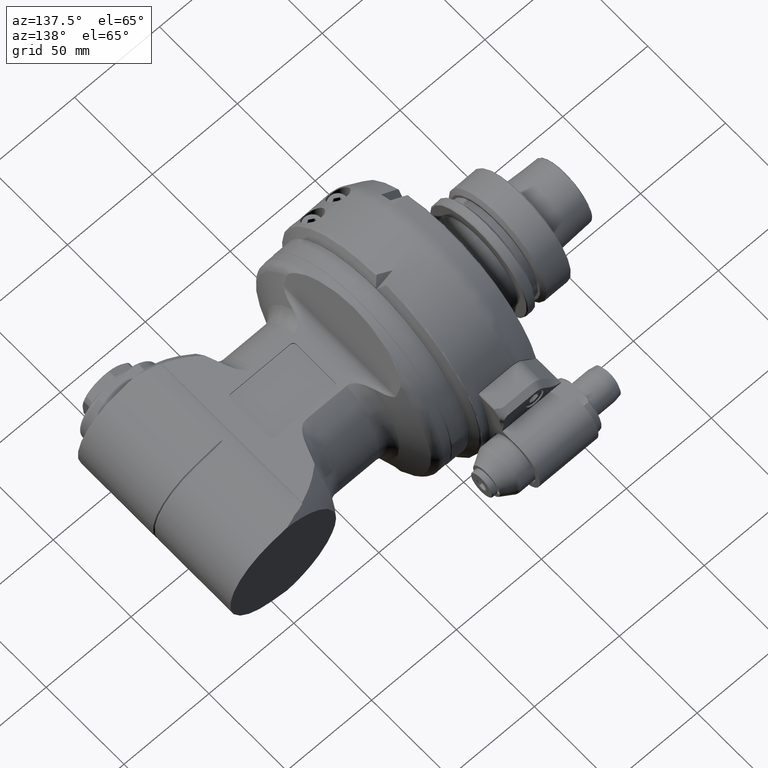
[diagram: clean part render]
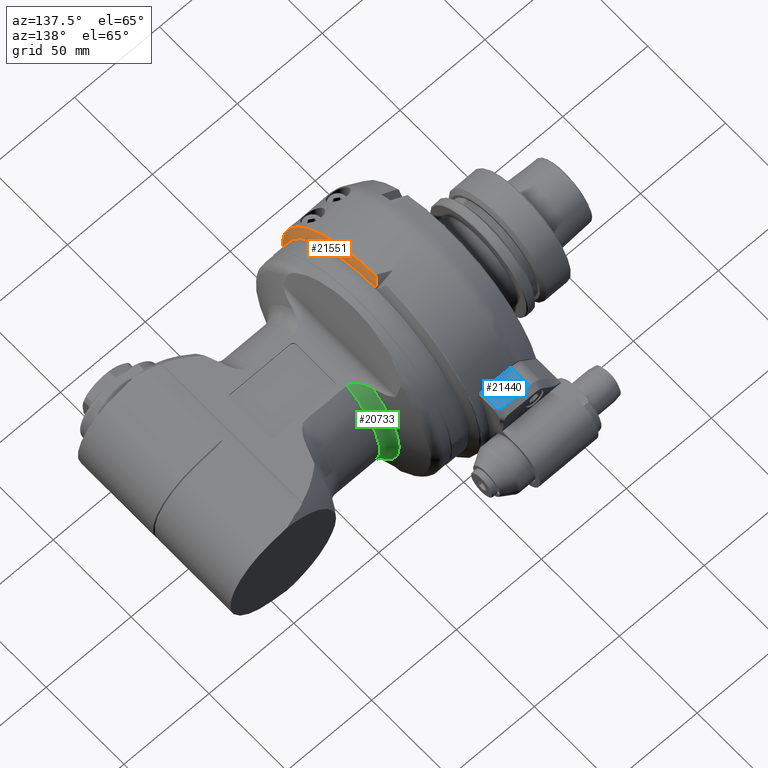
[diagram: same view with three faces highlighted in distinct colors, each labeled with its STEP entity id]
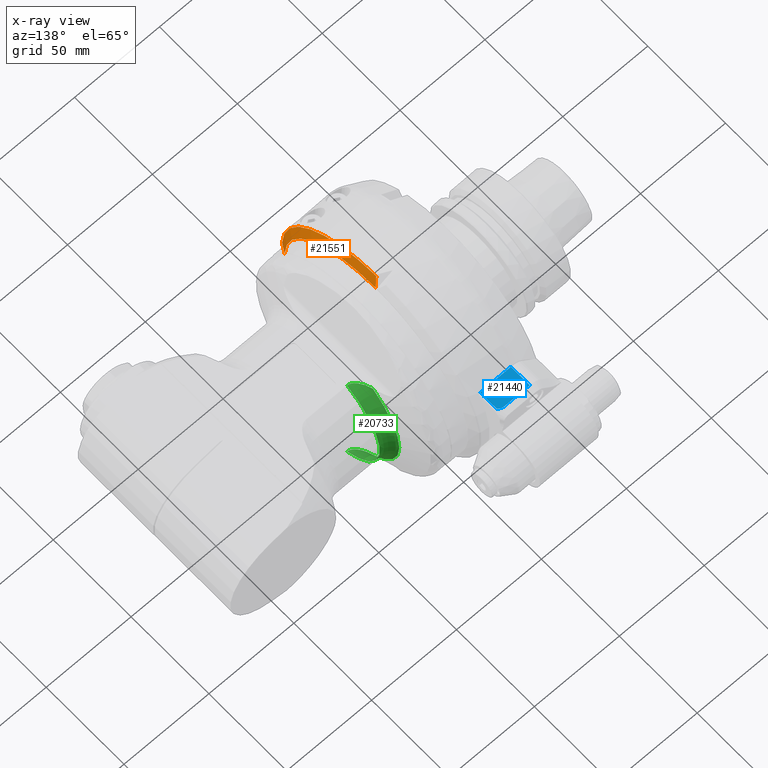
[diagram: x-ray of the same camera — body ghosted, the three highlighted faces saturated]
A machine part, auxiliary view with three faces highlighted in distinct colors.
The next image is the same camera in x-ray (body ghosted, the three faces saturated) — at least one of them is partly hidden behind the body in this view.
Their STEP definitions:

[orange] entity #21551 — the highlighted conical surface has half-angle 60 deg.
#461=B_SPLINE_CURVE_WITH_KNOTS('',3,(#48644,#48645,#48646,#48647,#48648,
#48649,#48650,#48651,#48652,#48653,#48654,#48655,#48656),.UNSPECIFIED.,
 .F.,.F.,(4,3,3,3,4),(0.,1.29933501823123,2.59866777029354,3.89799033605193,
5.19731135128558),.UNSPECIFIED.);
#462=B_SPLINE_CURVE_WITH_KNOTS('',3,(#48657,#48658,#48659,#48660,#48661,
#48662,#48663,#48664,#48665,#48666,#48667,#48668,#48669),.UNSPECIFIED.,
 .F.,.F.,(4,3,3,3,4),(0.,1.43268660536108,2.8653638122289,4.29803510924375,
5.73070480295307),.UNSPECIFIED.);
#607=CONICAL_SURFACE('',#24403,64.,1.0471975511966);
#2239=CIRCLE('',#24399,59.);
#2242=CIRCLE('',#24404,63.5);
#3247=FACE_OUTER_BOUND('',#4217,.T.);
#4217=EDGE_LOOP('',(#19795,#19796,#19797,#19798));
#9791=VERTEX_POINT('',#48627);
#9792=VERTEX_POINT('',#48628);
#9796=VERTEX_POINT('',#48641);
#9797=VERTEX_POINT('',#48642);
#13150=EDGE_CURVE('',#9791,#9792,#2239,.T.);
#13157=EDGE_CURVE('',#9796,#9797,#2242,.T.);
#13158=EDGE_CURVE('',#9792,#9797,#461,.T.);
#13159=EDGE_CURVE('',#9796,#9791,#462,.T.);
#19795=ORIENTED_EDGE('',*,*,#13157,.T.);
#19796=ORIENTED_EDGE('',*,*,#13158,.F.);
#19797=ORIENTED_EDGE('',*,*,#13150,.F.);
#19798=ORIENTED_EDGE('',*,*,#13159,.F.);
#21551=ADVANCED_FACE('',(#3247),#607,.T.);
#24399=AXIS2_PLACEMENT_3D('',#48629,#30948,#30949);
#24403=AXIS2_PLACEMENT_3D('',#48640,#30960,#30961);
#24404=AXIS2_PLACEMENT_3D('',#48643,#30962,#30963);
#30948=DIRECTION('center_axis',(1.,0.,0.));
#30949=DIRECTION('ref_axis',(0.,-1.,0.));
#30960=DIRECTION('center_axis',(-1.,0.,0.));
#30961=DIRECTION('ref_axis',(0.,1.,0.));
#30962=DIRECTION('center_axis',(1.,0.,0.));
#30963=DIRECTION('ref_axis',(0.,-1.,0.));
#48627=CARTESIAN_POINT('',(-14.0000002307687,-0.431645261540879,58.9984210158898));
#48628=CARTESIAN_POINT('',(-14.0000002307688,-58.9809291251124,1.49999984615385));
#48629=CARTESIAN_POINT('Origin',(-14.0000002307688,0.,0.));
#48640=CARTESIAN_POINT('Origin',(-16.8867515767169,0.,0.));
#48641=CARTESIAN_POINT('',(-16.5980764421201,-2.9708701142771,63.4304653204094));
#48642=CARTESIAN_POINT('',(-16.5980764421468,-63.4822809960934,1.49999984615384));
#48643=CARTESIAN_POINT('Origin',(-16.5980764421221,0.,0.));
#48644=CARTESIAN_POINT('Ctrl Pts',(-14.0000002307691,-58.980929125113,1.49999984615384));
#48645=CARTESIAN_POINT('Ctrl Pts',(-14.2165028592733,-59.3560439279506,
1.49999984615384));
#48646=CARTESIAN_POINT('Ctrl Pts',(-14.4330064890142,-59.7311581532941,
1.49999984615385));
#48647=CARTESIAN_POINT('Ctrl Pts',(-14.6495110648206,-60.106271832981,1.49999984615385));
#48648=CARTESIAN_POINT('Ctrl Pts',(-14.8660156406274,-60.4813855126685,
1.49999984615385));
#48649=CARTESIAN_POINT('Ctrl Pts',(-15.0825211625263,-60.856498646688,1.49999984615385));
#48650=CARTESIAN_POINT('Ctrl Pts',(-15.2990275793289,-61.2316112645871,
1.49999984615385));
#48651=CARTESIAN_POINT('Ctrl Pts',(-15.5155339961311,-61.6067238824855,
1.49999984615385));
#48652=CARTESIAN_POINT('Ctrl Pts',(-15.732041307861,-61.9818359842536,1.49999984615385));
#48653=CARTESIAN_POINT('Ctrl Pts',(-15.948549466951,-62.3569475973354,1.49999984615385));
#48654=CARTESIAN_POINT('Ctrl Pts',(-16.1650576260424,-62.7320592104196,
1.49999984615385));
#48655=CARTESIAN_POINT('Ctrl Pts',(-16.3815666325186,-63.1071703348143,
1.49999984615384));
#48656=CARTESIAN_POINT('Ctrl Pts',(-16.598076442122,-63.4822809960504,1.49999984615384));
#48657=CARTESIAN_POINT('Ctrl Pts',(-16.5980764421221,-2.97087011427896,
63.4304653204128));
#48658=CARTESIAN_POINT('Ctrl Pts',(-16.3796177023238,-2.76058180752677,
63.0615180871617));
#48659=CARTESIAN_POINT('Ctrl Pts',(-16.1616055772893,-2.54999216607342,
62.6924807557034));
#48660=CARTESIAN_POINT('Ctrl Pts',(-15.9440696991279,-2.3390818004764,62.3233480451839));
#48661=CARTESIAN_POINT('Ctrl Pts',(-15.726533823285,-2.12817143712715,61.9542153385984));
#48662=CARTESIAN_POINT('Ctrl Pts',(-15.5094741734663,-1.91694035672612,
61.5849872490974));
#48663=CARTESIAN_POINT('Ctrl Pts',(-15.2929229556197,-1.70536753133673,
61.2156580897968));
#48664=CARTESIAN_POINT('Ctrl Pts',(-15.0763717408182,-1.49379470892245,
60.8463289356896));
#48665=CARTESIAN_POINT('Ctrl Pts',(-14.8603289343609,-1.28188014906769,
60.476898706876));
#48666=CARTESIAN_POINT('Ctrl Pts',(-14.6448296044466,-1.06960103175968,
60.1073612996975));
#48667=CARTESIAN_POINT('Ctrl Pts',(-14.4293302784708,-0.857321918331403,
59.7378238992729));
#48668=CARTESIAN_POINT('Ctrl Pts',(-14.2143744022622,-0.644678255600911,
59.3681793144425));
#48669=CARTESIAN_POINT('Ctrl Pts',(-14.0000002307687,-0.43164526154088,
58.9984210158898));

[blue] entity #21440 — the highlighted planar face has unit normal (0, 0, -1).
#436=B_SPLINE_CURVE_WITH_KNOTS('',3,(#46498,#46499,#46500,#46501,#46502,
#46503,#46504,#46505,#46506,#46507,#46508,#46509,#46510,#46511,#46512,#46513,
#46514,#46515,#46516,#46517,#46518,#46519,#46520,#46521,#46522,#46523,#46524,
#46525,#46526,#46527,#46528,#46529,#46530,#46531,#46532,#46533,#46534,#46535,
#46536,#46537,#46538,#46539,#46540,#46541,#46542,#46543,#46544,#46545,#46546,
#46547,#46548,#46549,#46550,#46551,#46552,#46553,#46554,#46555,#46556,#46557,
#46558),.UNSPECIFIED.,.F.,.F.,(4,3,3,3,3,3,3,3,3,3,3,3,3,3,3,3,3,3,3,3,
4),(0.,0.106223676009217,0.212196239102737,0.318204730994492,0.424405081515264,
0.530795797405202,0.637358516383045,0.744060319606296,0.850855695988968,
1.06449194183231,1.27770940370377,1.48988846041323,1.70171346222576,1.91375228120589,
2.12609990589416,2.33877267367209,2.55171285041257,2.76479426591562,2.97782876659962,
3.19057324295497,3.40273703897832),.UNSPECIFIED.);
#3136=FACE_OUTER_BOUND('',#4093,.T.);
#4093=EDGE_LOOP('',(#19220,#19221,#19222,#19223,#19224));
#5549=LINE('',#45768,#7044);
#5610=LINE('',#46417,#7105);
#5614=LINE('',#46495,#7109);
#5615=LINE('',#46497,#7110);
#7044=VECTOR('',#30168,1.);
#7105=VECTOR('',#30363,1.);
#7109=VECTOR('',#30377,1.);
#7110=VECTOR('',#30378,1.);
#9551=VERTEX_POINT('',#45765);
#9552=VERTEX_POINT('',#45767);
#9616=VERTEX_POINT('',#46412);
#9618=VERTEX_POINT('',#46494);
#9619=VERTEX_POINT('',#46496);
#12780=EDGE_CURVE('',#9552,#9551,#5549,.T.);
#12882=EDGE_CURVE('',#9552,#9616,#5610,.T.);
#12887=EDGE_CURVE('',#9616,#9618,#5614,.T.);
#12888=EDGE_CURVE('',#9619,#9551,#5615,.T.);
#12889=EDGE_CURVE('',#9618,#9619,#436,.T.);
#19220=ORIENTED_EDGE('',*,*,#12887,.F.);
#19221=ORIENTED_EDGE('',*,*,#12882,.F.);
#19222=ORIENTED_EDGE('',*,*,#12780,.T.);
#19223=ORIENTED_EDGE('',*,*,#12888,.F.);
#19224=ORIENTED_EDGE('',*,*,#12889,.F.);
#20642=PLANE('',#24167);
#21440=ADVANCED_FACE('',(#3136),#20642,.F.);
#24167=AXIS2_PLACEMENT_3D('',#46493,#30375,#30376);
#30168=DIRECTION('',(1.,0.,0.));
#30363=DIRECTION('',(0.,1.,0.));
#30375=DIRECTION('center_axis',(0.,0.,-1.));
#30376=DIRECTION('ref_axis',(0.,1.,0.));
#30377=DIRECTION('',(1.,0.,0.));
#30378=DIRECTION('',(0.,-1.,0.));
#45765=CARTESIAN_POINT('',(-18.,41.75,29.));
#45767=CARTESIAN_POINT('',(-36.1890885503487,41.75,29.));
#45768=CARTESIAN_POINT('',(-43.,41.75,29.));
#46412=CARTESIAN_POINT('',(-36.1890884122241,53.7858987847126,29.));
#46417=CARTESIAN_POINT('',(-36.1890885503487,40.75,29.));
#46493=CARTESIAN_POINT('Origin',(-43.,75.75,29.));
#46494=CARTESIAN_POINT('',(-20.9999995155157,53.7858987847126,29.));
#46495=CARTESIAN_POINT('',(-43.,53.7858987847126,29.));
#46496=CARTESIAN_POINT('',(-18.,52.3466482589532,29.));
#46497=CARTESIAN_POINT('',(-18.,40.75,29.));
#46498=CARTESIAN_POINT('Ctrl Pts',(-20.9999995155157,53.7858987847126,29.));
#46499=CARTESIAN_POINT('Ctrl Pts',(-20.9645504970301,53.7858987847126,29.));
#46500=CARTESIAN_POINT('Ctrl Pts',(-20.9291413548841,53.7852454078151,29.));
#46501=CARTESIAN_POINT('Ctrl Pts',(-20.8937997823181,53.7839455315973,29.));
#46502=CARTESIAN_POINT('Ctrl Pts',(-20.858454461928,53.7826455175331,29.));
#46503=CARTESIAN_POINT('Ctrl Pts',(-20.8231925452817,53.7807000433148,29.));
#46504=CARTESIAN_POINT('Ctrl Pts',(-20.7879934943088,53.7781173089411,29.));
#46505=CARTESIAN_POINT('Ctrl Pts',(-20.7527825778415,53.7755337039353,29.));
#46506=CARTESIAN_POINT('Ctrl Pts',(-20.717589155421,53.7723085886177,29.));
#46507=CARTESIAN_POINT('Ctrl Pts',(-20.6824326089904,53.7684488500588,29.));
#46508=CARTESIAN_POINT('Ctrl Pts',(-20.6472761488016,53.7645891209681,29.));
#46509=CARTESIAN_POINT('Ctrl Pts',(-20.6121567844597,53.7600947771222,28.9999999999992));
#46510=CARTESIAN_POINT('Ctrl Pts',(-20.5770958909532,53.7549766966422,28.9999999999992));
#46511=CARTESIAN_POINT('Ctrl Pts',(-20.5420350576738,53.7498586249539,28.9999999999992));
#46512=CARTESIAN_POINT('Ctrl Pts',(-20.5070329080635,53.7441168444871,28.9999999999959));
#46513=CARTESIAN_POINT('Ctrl Pts',(-20.472111915344,53.7377662904024,28.9999999999959));
#46514=CARTESIAN_POINT('Ctrl Pts',(-20.4371909602332,53.7314157431569,28.9999999999959));
#46515=CARTESIAN_POINT('Ctrl Pts',(-20.4023513588208,53.7244564656303,29.));
#46516=CARTESIAN_POINT('Ctrl Pts',(-20.3676159111272,53.7169073153857,29.));
#46517=CARTESIAN_POINT('Ctrl Pts',(-20.3328804819217,53.7093581691591,29.));
#46518=CARTESIAN_POINT('Ctrl Pts',(-20.2982493811714,53.7012192044455,29.));
#46519=CARTESIAN_POINT('Ctrl Pts',(-20.2637451046765,53.6925129083772,29.));
#46520=CARTESIAN_POINT('Ctrl Pts',(-20.2292408310812,53.6838066130406,29.));
#46521=CARTESIAN_POINT('Ctrl Pts',(-20.1948635309355,53.6745330467537,29.));
#46522=CARTESIAN_POINT('Ctrl Pts',(-20.1606349099881,53.6647179215886,29.));
#46523=CARTESIAN_POINT('Ctrl Pts',(-20.0921770886406,53.6450875050991,29.));
#46524=CARTESIAN_POINT('Ctrl Pts',(-20.0243170966088,53.6232891964721,29.));
#46525=CARTESIAN_POINT('Ctrl Pts',(-19.9572121532455,53.5995593200981,29.));
#46526=CARTESIAN_POINT('Ctrl Pts',(-19.8901069252722,53.5758293430795,29.));
#46527=CARTESIAN_POINT('Ctrl Pts',(-19.8237590932447,53.5501695742183,28.999999999995));
#46528=CARTESIAN_POINT('Ctrl Pts',(-19.7583030430865,53.5228445459768,28.999999999995));
#46529=CARTESIAN_POINT('Ctrl Pts',(-19.6928258128896,53.4955106759988,28.999999999995));
#46530=CARTESIAN_POINT('Ctrl Pts',(-19.6283298386961,53.4665535390769,28.9999999999992));
#46531=CARTESIAN_POINT('Ctrl Pts',(-19.5646758326537,53.4361327058537,28.9999999999992));
#46532=CARTESIAN_POINT('Ctrl Pts',(-19.5009853817174,53.4056944552814,28.9999999999992));
#46533=CARTESIAN_POINT('Ctrl Pts',(-19.4380165665139,53.3737304846613,29.));
#46534=CARTESIAN_POINT('Ctrl Pts',(-19.3757371069241,53.340402690242,29.));
#46535=CARTESIAN_POINT('Ctrl Pts',(-19.3134574374803,53.3070747835228,29.));
#46536=CARTESIAN_POINT('Ctrl Pts',(-19.2518663486173,53.2723826343644,29.));
#46537=CARTESIAN_POINT('Ctrl Pts',(-19.1909317902581,53.2364742970556,29.));
#46538=CARTESIAN_POINT('Ctrl Pts',(-19.1299971153991,53.2005658910942,29.));
#46539=CARTESIAN_POINT('Ctrl Pts',(-19.0697183600783,53.163440872973,29.));
#46540=CARTESIAN_POINT('Ctrl Pts',(-19.0100665084633,53.1252354510745,29.));
#46541=CARTESIAN_POINT('Ctrl Pts',(-18.9504146107435,53.0870299996472,29.));
#46542=CARTESIAN_POINT('Ctrl Pts',(-18.8913891624988,53.0477437593875,29.));
#46543=CARTESIAN_POINT('Ctrl Pts',(-18.8329659153629,53.007503316666,29.));
#46544=CARTESIAN_POINT('Ctrl Pts',(-18.7745426705264,52.9672628755281,29.));
#46545=CARTESIAN_POINT('Ctrl Pts',(-18.7167213041746,52.9260679058021,29.));
#46546=CARTESIAN_POINT('Ctrl Pts',(-18.6594832181309,52.8840374532367,29.));
#46547=CARTESIAN_POINT('Ctrl Pts',(-18.6022451640175,52.842007024118,29.));
#46548=CARTESIAN_POINT('Ctrl Pts',(-18.54559017012,52.7991408493378,29.));
#46549=CARTESIAN_POINT('Ctrl Pts',(-18.4895055514496,52.7555521881894,29.));
#46550=CARTESIAN_POINT('Ctrl Pts',(-18.433420979439,52.7119635633047,29.));
#46551=CARTESIAN_POINT('Ctrl Pts',(-18.3779066387478,52.6676522484583,29.));
#46552=CARTESIAN_POINT('Ctrl Pts',(-18.3229555979311,52.622727078947,29.));
#46553=CARTESIAN_POINT('Ctrl Pts',(-18.2680046071194,52.5778019503172,29.));
#46554=CARTESIAN_POINT('Ctrl Pts',(-18.213616827428,52.5322628151454,29.));
#46555=CARTESIAN_POINT('Ctrl Pts',(-18.1597906477489,52.4862150578427,29.));
#46556=CARTESIAN_POINT('Ctrl Pts',(-18.1059645127936,52.4401673388007,29.));
#46557=CARTESIAN_POINT('Ctrl Pts',(-18.0526999286238,52.3936108893287,29.));
#46558=CARTESIAN_POINT('Ctrl Pts',(-18.,52.3466482589532,29.));

[green] entity #20733 — the highlighted toroidal blend (fillet) surface has major radius 46 mm and minor (blend) radius 8 mm.
#111=TOROIDAL_SURFACE('',#21959,46.,8.);
#331=B_SPLINE_CURVE_WITH_KNOTS('',3,(#32562,#32563,#32564,#32565,#32566,
#32567,#32568,#32569,#32570,#32571,#32572,#32573,#32574,#32575,#32576,#32577,
#32578,#32579,#32580,#32581,#32582,#32583,#32584,#32585,#32586,#32587,#32588,
#32589,#32590,#32591,#32592,#32593,#32594,#32595,#32596,#32597,#32598,#32599,
#32600,#32601,#32602,#32603,#32604,#32605,#32606,#32607,#32608,#32609,#32610,
#32611,#32612,#32613,#32614,#32615,#32616,#32617,#32618,#32619,#32620,#32621,
#32622,#32623,#32624,#32625,#32626,#32627,#32628,#32629,#32630,#32631,#32632,
#32633,#32634,#32635,#32636,#32637,#32638,#32639,#32640,#32641,#32642,#32643,
#32644,#32645,#32646,#32647,#32648,#32649,#32650,#32651,#32652,#32653,#32654,
#32655,#32656,#32657,#32658,#32659,#32660,#32661,#32662,#32663,#32664,#32665,
#32666,#32667,#32668,#32669,#32670,#32671,#32672,#32673),.UNSPECIFIED.,
 .F.,.F.,(4,3,3,3,3,3,3,3,3,3,3,3,3,3,3,3,3,3,3,3,3,3,3,3,3,3,3,3,3,3,3,
3,3,3,3,3,3,4),(0.,0.754640865252716,1.50938679204716,2.26367286119793,
2.64048823815989,3.01701246336475,3.39319728050735,3.76899933905744,4.14437999868486,
4.51930505341072,4.89374438720557,5.08077357813877,5.26788401188095,5.64277294173136,
6.01821086671146,6.39384468273078,6.76939314391912,7.1446536406777,7.51950777372668,
7.89392518688681,8.08098515531169,8.26799568870665,8.64310317152648,9.01905640547881,
9.39488415713517,9.76999224090807,9.95720954852625,10.1442517188948,10.3318441762605,
10.5200796455404,10.7086669138162,10.8973420518474,11.0858764417082,11.2740857824534,
11.4618407036077,11.6490796476495,11.8364089392723,12.0244231753997),
 .UNSPECIFIED.);
#332=B_SPLINE_CURVE_WITH_KNOTS('',3,(#32676,#32677,#32678,#32679,#32680,
#32681,#32682,#32683,#32684,#32685,#32686,#32687,#32688,#32689,#32690,#32691,
#32692,#32693,#32694,#32695,#32696,#32697,#32698,#32699,#32700,#32701,#32702,
#32703,#32704,#32705,#32706,#32707,#32708,#32709,#32710,#32711,#32712,#32713,
#32714,#32715,#32716,#32717,#32718,#32719,#32720,#32721,#32722,#32723,#32724,
#32725,#32726,#32727,#32728,#32729,#32730,#32731,#32732,#32733,#32734,#32735,
#32736,#32737,#32738,#32739,#32740,#32741,#32742,#32743,#32744,#32745,#32746,
#32747,#32748,#32749,#32750,#32751,#32752,#32753,#32754,#32755,#32756,#32757,
#32758,#32759,#32760,#32761,#32762,#32763,#32764,#32765,#32766,#32767,#32768,
#32769,#32770,#32771,#32772,#32773,#32774,#32775,#32776,#32777,#32778),
 .UNSPECIFIED.,.F.,.F.,(4,3,3,3,3,3,3,3,3,3,3,3,3,3,3,3,3,3,3,3,3,3,3,3,
3,3,3,3,3,3,3,3,3,3,4),(0.,0.187462754898776,0.375515241055319,0.564029983268765,
0.752818255375853,0.94164570243144,1.13024526520598,1.50568270758852,1.88070910233338,
2.25683635823386,2.63354943298042,3.00976726747091,3.19722473565155,3.38441680662695,
3.75912954332711,4.1343865908377,4.5101860174284,4.88638251471936,5.26269586606877,
5.63872225479096,6.01394731152092,6.38838795147884,6.7631334195061,7.13823029258416,
7.51366754259678,7.88942158361253,8.26545575225131,8.64172000908109,9.01815085553023,
9.3946714452021,9.77119186126609,10.5238097534659,11.2750418856638,11.6497892926489,
12.0244231013798),.UNSPECIFIED.);
#627=CIRCLE('',#21940,42.6190539060744);
#638=CIRCLE('',#21960,38.);
#2429=FACE_OUTER_BOUND('',#3326,.T.);
#3326=EDGE_LOOP('',(#13421,#13422,#13423,#13424));
#7359=VERTEX_POINT('',#32273);
#7360=VERTEX_POINT('',#32274);
#7379=VERTEX_POINT('',#32561);
#7380=VERTEX_POINT('',#32674);
#9964=EDGE_CURVE('',#7359,#7360,#627,.T.);
#9987=EDGE_CURVE('',#7359,#7379,#331,.T.);
#9988=EDGE_CURVE('',#7379,#7380,#638,.T.);
#9989=EDGE_CURVE('',#7380,#7360,#332,.T.);
#13421=ORIENTED_EDGE('',*,*,#9964,.F.);
#13422=ORIENTED_EDGE('',*,*,#9987,.T.);
#13423=ORIENTED_EDGE('',*,*,#9988,.T.);
#13424=ORIENTED_EDGE('',*,*,#9989,.T.);
#20733=ADVANCED_FACE('',(#2429),#111,.F.);
#21940=AXIS2_PLACEMENT_3D('',#32275,#24648,#24649);
#21959=AXIS2_PLACEMENT_3D('',#32560,#24686,#24687);
#21960=AXIS2_PLACEMENT_3D('',#32675,#24688,#24689);
#24648=DIRECTION('center_axis',(-1.,0.,0.));
#24649=DIRECTION('ref_axis',(0.,6.12323399573677E-17,1.));
#24686=DIRECTION('center_axis',(-1.,0.,0.));
#24687=DIRECTION('ref_axis',(0.,6.12323399573677E-17,1.));
#24688=DIRECTION('center_axis',(-1.,0.,0.));
#24689=DIRECTION('ref_axis',(0.,6.12323399573677E-17,1.));
#32273=CARTESIAN_POINT('',(203.701657547447,25.6979329100274,34.));
#32274=CARTESIAN_POINT('',(203.701657548832,25.6979329035305,-34.000000001188));
#32275=CARTESIAN_POINT('Origin',(203.701657547444,-1.08770485875751E-31,
-1.77635683940025E-15));
#32560=CARTESIAN_POINT('Origin',(210.952119843737,-1.08770485875751E-31,
-1.77635683940025E-15));
#32561=CARTESIAN_POINT('',(210.952119843737,16.9705627484772,34.));
#32562=CARTESIAN_POINT('Ctrl Pts',(203.701657547444,25.6979329100385,34.0000000000001));
#32563=CARTESIAN_POINT('Ctrl Pts',(203.769721122253,25.4558590914663,34.0000000000001));
#32564=CARTESIAN_POINT('Ctrl Pts',(203.842221992034,25.2149057409605,34.0000000000001));
#32565=CARTESIAN_POINT('Ctrl Pts',(203.919106745194,24.9753434053418,34.0000000000001));
#32566=CARTESIAN_POINT('Ctrl Pts',(203.99599156123,24.7357808738135,34.0000000000001));
#32567=CARTESIAN_POINT('Ctrl Pts',(204.077260080745,24.4976079213907,33.9999999999997));
#32568=CARTESIAN_POINT('Ctrl Pts',(204.162884479866,24.2610958597503,33.9999999999997));
#32569=CARTESIAN_POINT('Ctrl Pts',(204.248508893649,24.0245837576105,33.9999999999997));
#32570=CARTESIAN_POINT('Ctrl Pts',(204.338489122134,23.7897304893703,33.9999999999994));
#32571=CARTESIAN_POINT('Ctrl Pts',(204.43283106097,23.5568163393474,33.9999999999994));
#32572=CARTESIAN_POINT('Ctrl Pts',(204.480002079662,23.4403591426875,33.9999999999994));
#32573=CARTESIAN_POINT('Ctrl Pts',(204.528264201387,23.3243866835748,33.9999999999997));
#32574=CARTESIAN_POINT('Ctrl Pts',(204.577622130094,23.2089355634683,33.9999999999997));
#32575=CARTESIAN_POINT('Ctrl Pts',(204.626980052252,23.0934844586806,33.9999999999997));
#32576=CARTESIAN_POINT('Ctrl Pts',(204.677433789261,22.9785545861021,34.0000000000002));
#32577=CARTESIAN_POINT('Ctrl Pts',(204.728991069403,22.8641842900448,34.0000000000002));
#32578=CARTESIAN_POINT('Ctrl Pts',(204.780548337868,22.749814019891,34.0000000000002));
#32579=CARTESIAN_POINT('Ctrl Pts',(204.833209162836,22.636003199573,34.0000000000007));
#32580=CARTESIAN_POINT('Ctrl Pts',(204.88698464687,22.5227924945276,34.0000000000007));
#32581=CARTESIAN_POINT('Ctrl Pts',(204.940760112507,22.4095818282128,34.0000000000007));
#32582=CARTESIAN_POINT('Ctrl Pts',(204.995650257877,22.2969711264513,34.0000000000009));
#32583=CARTESIAN_POINT('Ctrl Pts',(205.051669935726,22.1850040712864,34.0000000000009));
#32584=CARTESIAN_POINT('Ctrl Pts',(205.107689586624,22.0730370699894,34.0000000000009));
#32585=CARTESIAN_POINT('Ctrl Pts',(205.164838800099,21.961713535934,34.0000000000007));
#32586=CARTESIAN_POINT('Ctrl Pts',(205.223136583428,21.8510810020126,34.0000000000007));
#32587=CARTESIAN_POINT('Ctrl Pts',(205.281434328667,21.7404485403748,34.0000000000007));
#32588=CARTESIAN_POINT('Ctrl Pts',(205.340880686152,21.6305068651869,34.0000000000002));
#32589=CARTESIAN_POINT('Ctrl Pts',(205.401499249922,21.5213083647163,34.0000000000002));
#32590=CARTESIAN_POINT('Ctrl Pts',(205.462117761434,21.4121099583819,34.0000000000002));
#32591=CARTESIAN_POINT('Ctrl Pts',(205.523908538101,21.3036544710602,34.));
#32592=CARTESIAN_POINT('Ctrl Pts',(205.586900221824,21.1960003533423,34.));
#32593=CARTESIAN_POINT('Ctrl Pts',(205.618396067232,21.1421732884221,34.));
#32594=CARTESIAN_POINT('Ctrl Pts',(205.65019217434,21.0885467460187,34.));
#32595=CARTESIAN_POINT('Ctrl Pts',(205.682292804197,21.0351284314643,34.));
#32596=CARTESIAN_POINT('Ctrl Pts',(205.714394584272,20.9817082028438,34.));
#32597=CARTESIAN_POINT('Ctrl Pts',(205.746837653804,20.9284351182875,34.0000000000001));
#32598=CARTESIAN_POINT('Ctrl Pts',(205.779623790532,20.8753267565213,34.0000000000001));
#32599=CARTESIAN_POINT('Ctrl Pts',(205.845196086362,20.76910999675,34.0000000000001));
#32600=CARTESIAN_POINT('Ctrl Pts',(205.91214022593,20.6635520671184,34.0000000000028));
#32601=CARTESIAN_POINT('Ctrl Pts',(205.98047510193,20.5587936834516,34.0000000000028));
#32602=CARTESIAN_POINT('Ctrl Pts',(206.048810039527,20.4540352053565,34.0000000000028));
#32603=CARTESIAN_POINT('Ctrl Pts',(206.118535697222,20.3500759940774,34.0000000000151));
#32604=CARTESIAN_POINT('Ctrl Pts',(206.189678936763,20.2470578758992,34.0000000000151));
#32605=CARTESIAN_POINT('Ctrl Pts',(206.260822232862,20.1440396758231,34.0000000000151));
#32606=CARTESIAN_POINT('Ctrl Pts',(206.333383150638,20.0419621546874,34.0000000000358));
#32607=CARTESIAN_POINT('Ctrl Pts',(206.407398579575,19.9409702196398,34.0000000000358));
#32608=CARTESIAN_POINT('Ctrl Pts',(206.481414046183,19.8399782331908,34.0000000000358));
#32609=CARTESIAN_POINT('Ctrl Pts',(206.55688415255,19.7400712417292,34.));
#32610=CARTESIAN_POINT('Ctrl Pts',(206.633857903768,19.6414001618135,34.));
#32611=CARTESIAN_POINT('Ctrl Pts',(206.710831652641,19.5427290849039,34.));
#32612=CARTESIAN_POINT('Ctrl Pts',(206.789309311359,19.4452930988598,34.));
#32613=CARTESIAN_POINT('Ctrl Pts',(206.869353967775,19.3492533010248,34.));
#32614=CARTESIAN_POINT('Ctrl Pts',(206.949398550516,19.253213591587,34.));
#32615=CARTESIAN_POINT('Ctrl Pts',(207.031010601067,19.1585689569957,34.0000000000191));
#32616=CARTESIAN_POINT('Ctrl Pts',(207.114268885541,19.065496415866,34.0000000000191));
#32617=CARTESIAN_POINT('Ctrl Pts',(207.197526980447,18.9724240866494,34.0000000000191));
#32618=CARTESIAN_POINT('Ctrl Pts',(207.282432082516,18.8809223740171,34.0000000000019));
#32619=CARTESIAN_POINT('Ctrl Pts',(207.369079470664,18.7911918631918,34.0000000000019));
#32620=CARTESIAN_POINT('Ctrl Pts',(207.412403166065,18.7463266064051,34.0000000000019));
#32621=CARTESIAN_POINT('Ctrl Pts',(207.456162807642,18.7019044489624,34.0000000000001));
#32622=CARTESIAN_POINT('Ctrl Pts',(207.50037193196,18.6579533277766,34.0000000000001));
#32623=CARTESIAN_POINT('Ctrl Pts',(207.544589339944,18.6139939712671,34.0000000000001));
#32624=CARTESIAN_POINT('Ctrl Pts',(207.58921928003,18.5705412075898,34.));
#32625=CARTESIAN_POINT('Ctrl Pts',(207.634384406142,18.5275222696753,34.));
#32626=CARTESIAN_POINT('Ctrl Pts',(207.724723039484,18.4414764109898,34.));
#32627=CARTESIAN_POINT('Ctrl Pts',(207.817204932227,18.357170600711,34.0000000000043));
#32628=CARTESIAN_POINT('Ctrl Pts',(207.911793109369,18.275084380523,34.0000000000043));
#32629=CARTESIAN_POINT('Ctrl Pts',(208.006381348229,18.1929981067744,34.0000000000043));
#32630=CARTESIAN_POINT('Ctrl Pts',(208.103076139236,18.1131308485616,34.0000000000149));
#32631=CARTESIAN_POINT('Ctrl Pts',(208.201848745381,18.0359667326265,34.0000000000149));
#32632=CARTESIAN_POINT('Ctrl Pts',(208.30062136245,17.9588026081574,34.0000000000149));
#32633=CARTESIAN_POINT('Ctrl Pts',(208.401472420488,17.8843407750103,34.0000000000105));
#32634=CARTESIAN_POINT('Ctrl Pts',(208.504382442997,17.8130745241592,34.0000000000105));
#32635=CARTESIAN_POINT('Ctrl Pts',(208.607292367098,17.7418083414563,34.0000000000105));
#32636=CARTESIAN_POINT('Ctrl Pts',(208.712262408343,17.6737366151882,34.000000000001));
#32637=CARTESIAN_POINT('Ctrl Pts',(208.819281381583,17.6093677743032,34.000000000001));
#32638=CARTESIAN_POINT('Ctrl Pts',(208.872790916565,17.5771833247724,34.000000000001));
#32639=CARTESIAN_POINT('Ctrl Pts',(208.926812962878,17.5459247738087,34.));
#32640=CARTESIAN_POINT('Ctrl Pts',(208.981346720962,17.5156575492142,34.));
#32641=CARTESIAN_POINT('Ctrl Pts',(209.035889608729,17.4853852574802,34.));
#32642=CARTESIAN_POINT('Ctrl Pts',(209.090904221656,17.456125116606,34.));
#32643=CARTESIAN_POINT('Ctrl Pts',(209.146504091464,17.427885789514,34.));
#32644=CARTESIAN_POINT('Ctrl Pts',(209.20212998222,17.399633246311,34.));
#32645=CARTESIAN_POINT('Ctrl Pts',(209.258431597692,17.3723594083175,33.9999999999999));
#32646=CARTESIAN_POINT('Ctrl Pts',(209.315354549503,17.346178858808,33.9999999999999));
#32647=CARTESIAN_POINT('Ctrl Pts',(209.372277338406,17.3199983842243,33.9999999999999));
#32648=CARTESIAN_POINT('Ctrl Pts',(209.429821091595,17.2949115289558,33.9999999999993));
#32649=CARTESIAN_POINT('Ctrl Pts',(209.487923078657,17.2710275788759,33.9999999999993));
#32650=CARTESIAN_POINT('Ctrl Pts',(209.546024942049,17.2471436796327,33.9999999999993));
#32651=CARTESIAN_POINT('Ctrl Pts',(209.604684516059,17.2244630578733,33.9999999999981));
#32652=CARTESIAN_POINT('Ctrl Pts',(209.663831281255,17.2030869546139,33.9999999999981));
#32653=CARTESIAN_POINT('Ctrl Pts',(209.722977974881,17.1817108772205,33.9999999999981));
#32654=CARTESIAN_POINT('Ctrl Pts',(209.78261116105,17.1616397136715,33.9999999999976));
#32655=CARTESIAN_POINT('Ctrl Pts',(209.842653678369,17.1429638645302,33.9999999999976));
#32656=CARTESIAN_POINT('Ctrl Pts',(209.902696193284,17.1242880161364,33.9999999999976));
#32657=CARTESIAN_POINT('Ctrl Pts',(209.963147153759,17.1070078703766,33.9999999999983));
#32658=CARTESIAN_POINT('Ctrl Pts',(210.023924698703,17.0912003571074,33.9999999999983));
#32659=CARTESIAN_POINT('Ctrl Pts',(210.08470233123,17.0753928210591,33.9999999999983));
#32660=CARTESIAN_POINT('Ctrl Pts',(210.145805485114,17.0610582580136,33.9999999999994));
#32661=CARTESIAN_POINT('Ctrl Pts',(210.207150502747,17.048257973723,33.9999999999994));
#32662=CARTESIAN_POINT('Ctrl Pts',(210.268495721459,17.0354576474753,33.9999999999994));
#32663=CARTESIAN_POINT('Ctrl Pts',(210.330081601966,17.0241918464059,33.9999999999999));
#32664=CARTESIAN_POINT('Ctrl Pts',(210.391826636255,17.0145049668692,33.9999999999999));
#32665=CARTESIAN_POINT('Ctrl Pts',(210.453572009157,17.0048180342092,33.9999999999999));
#32666=CARTESIAN_POINT('Ctrl Pts',(210.515475267949,16.9967101316842,34.));
#32667=CARTESIAN_POINT('Ctrl Pts',(210.577461987093,16.9902087527296,34.));
#32668=CARTESIAN_POINT('Ctrl Pts',(210.639437461082,16.9837085532054,34.));
#32669=CARTESIAN_POINT('Ctrl Pts',(210.701712592406,16.9787919625212,34.));
#32670=CARTESIAN_POINT('Ctrl Pts',(210.764192229675,16.9755053758737,34.));
#32671=CARTESIAN_POINT('Ctrl Pts',(210.826671122594,16.9722188283808,34.));
#32672=CARTESIAN_POINT('Ctrl Pts',(210.889351759878,16.9705627484772,34.));
#32673=CARTESIAN_POINT('Ctrl Pts',(210.952119843737,16.9705627484772,34.));
#32674=CARTESIAN_POINT('',(210.952119843737,16.9705627484771,-34.));
#32675=CARTESIAN_POINT('Origin',(210.952119843737,-1.08770485875751E-31,
-1.77635683940025E-15));
#32676=CARTESIAN_POINT('Ctrl Pts',(210.952119843737,16.9705627484273,-34.0000000000111));
#32677=CARTESIAN_POINT('Ctrl Pts',(210.889738420996,16.9705627484274,-34.0000000000111));
#32678=CARTESIAN_POINT('Ctrl Pts',(210.827248476323,16.9721981367303,-34.));
#32679=CARTESIAN_POINT('Ctrl Pts',(210.764742951811,16.97547644895,-34.));
#32680=CARTESIAN_POINT('Ctrl Pts',(210.702237888416,16.9787547369848,-34.));
#32681=CARTESIAN_POINT('Ctrl Pts',(210.639719035634,16.9836760392102,-33.9999999999999));
#32682=CARTESIAN_POINT('Ctrl Pts',(210.577291210939,16.9902266684002,-33.9999999999999));
#32683=CARTESIAN_POINT('Ctrl Pts',(210.514863648507,16.9967772700706,-33.9999999999999));
#32684=CARTESIAN_POINT('Ctrl Pts',(210.452528856756,17.0049570781251,-33.9999999999997));
#32685=CARTESIAN_POINT('Ctrl Pts',(210.390396660034,17.0147295954284,-33.9999999999997));
#32686=CARTESIAN_POINT('Ctrl Pts',(210.328264568254,17.0245020962259,-33.9999999999997));
#32687=CARTESIAN_POINT('Ctrl Pts',(210.266336711209,17.0358670045212,-33.9999999999994));
#32688=CARTESIAN_POINT('Ctrl Pts',(210.20472211105,17.0487655103137,-33.9999999999994));
#32689=CARTESIAN_POINT('Ctrl Pts',(210.143107483134,17.0616640219172,-33.9999999999994));
#32690=CARTESIAN_POINT('Ctrl Pts',(210.081807557141,17.0760956987268,-33.9999999999995));
#32691=CARTESIAN_POINT('Ctrl Pts',(210.020925818995,17.0919815928758,-33.9999999999995));
#32692=CARTESIAN_POINT('Ctrl Pts',(209.960043942054,17.1078675232404,-33.9999999999995));
#32693=CARTESIAN_POINT('Ctrl Pts',(209.899581451324,17.1252071658328,-33.9999999999998));
#32694=CARTESIAN_POINT('Ctrl Pts',(209.839632682641,17.1439048102133,-33.9999999999998));
#32695=CARTESIAN_POINT('Ctrl Pts',(209.719696431984,17.1813121734059,-33.9999999999998));
#32696=CARTESIAN_POINT('Ctrl Pts',(209.601984009436,17.2241004630383,-34.));
#32697=CARTESIAN_POINT('Ctrl Pts',(209.486684502925,17.2715369363222,-34.));
#32698=CARTESIAN_POINT('Ctrl Pts',(209.371248833902,17.3190294295277,-34.));
#32699=CARTESIAN_POINT('Ctrl Pts',(209.257649075157,17.3714197454014,-34.0000000000002));
#32700=CARTESIAN_POINT('Ctrl Pts',(209.146024693899,17.4281293095698,-34.0000000000002));
#32701=CARTESIAN_POINT('Ctrl Pts',(209.034400610929,17.4848387221959,-34.0000000000002));
#32702=CARTESIAN_POINT('Ctrl Pts',(208.924754207703,17.5458658102959,-34.0000000000059));
#32703=CARTESIAN_POINT('Ctrl Pts',(208.817220311891,17.6106080589689,-34.0000000000059));
#32704=CARTESIAN_POINT('Ctrl Pts',(208.709686484258,17.675350266594,-34.0000000000059));
#32705=CARTESIAN_POINT('Ctrl Pts',(208.604266489668,17.743806387388,-34.0000000000058));
#32706=CARTESIAN_POINT('Ctrl Pts',(208.501086121634,17.8153588418143,-34.0000000000058));
#32707=CARTESIAN_POINT('Ctrl Pts',(208.397905699056,17.8869113340657,-34.0000000000058));
#32708=CARTESIAN_POINT('Ctrl Pts',(208.296965588551,17.9615593037419,-34.0000000000003));
#32709=CARTESIAN_POINT('Ctrl Pts',(208.198381833985,18.0386769649471,-34.0000000000003));
#32710=CARTESIAN_POINT('Ctrl Pts',(208.149089873212,18.0772358608596,-34.0000000000003));
#32711=CARTESIAN_POINT('Ctrl Pts',(208.1003872711,18.1164117511219,-34.));
#32712=CARTESIAN_POINT('Ctrl Pts',(208.052286685556,18.1561268423081,-34.));
#32713=CARTESIAN_POINT('Ctrl Pts',(208.004181324395,18.1958458765667,-34.));
#32714=CARTESIAN_POINT('Ctrl Pts',(207.95657568705,18.2361884104764,-34.0000000000005));
#32715=CARTESIAN_POINT('Ctrl Pts',(207.909454592901,18.2771146342764,-34.0000000000005));
#32716=CARTESIAN_POINT('Ctrl Pts',(207.81521240048,18.3589670854562,-34.0000000000005));
#32717=CARTESIAN_POINT('Ctrl Pts',(207.722906502999,18.4431525258616,-34.0000000000191));
#32718=CARTESIAN_POINT('Ctrl Pts',(207.632428090666,18.5293862147615,-34.0000000000191));
#32719=CARTESIAN_POINT('Ctrl Pts',(207.541949332445,18.615620233322,-34.0000000000191));
#32720=CARTESIAN_POINT('Ctrl Pts',(207.453296522062,18.7039047079888,-34.));
#32721=CARTESIAN_POINT('Ctrl Pts',(207.366378831407,18.7939897568721,-34.));
#32722=CARTESIAN_POINT('Ctrl Pts',(207.279461002658,18.884074948881,-34.));
#32723=CARTESIAN_POINT('Ctrl Pts',(207.194277358214,18.9759623860226,-34.));
#32724=CARTESIAN_POINT('Ctrl Pts',(207.110755838524,19.0694255985931,-34.));
#32725=CARTESIAN_POINT('Ctrl Pts',(207.027234305912,19.1628888256241,-34.));
#32726=CARTESIAN_POINT('Ctrl Pts',(206.945374370635,19.2579290449487,-34.));
#32727=CARTESIAN_POINT('Ctrl Pts',(206.865121550366,19.3543345292809,-34.));
#32728=CARTESIAN_POINT('Ctrl Pts',(206.784868784601,19.4507399481399,-34.));
#32729=CARTESIAN_POINT('Ctrl Pts',(206.706222872934,19.548511487159,-34.0000000000244));
#32730=CARTESIAN_POINT('Ctrl Pts',(206.629144664485,19.6474459243055,-34.0000000000244));
#32731=CARTESIAN_POINT('Ctrl Pts',(206.552066539657,19.7463802541189,-34.0000000000244));
#32732=CARTESIAN_POINT('Ctrl Pts',(206.476556025456,19.8464780600254,-34.0000000000035));
#32733=CARTESIAN_POINT('Ctrl Pts',(206.402586603647,19.9475403528646,-34.0000000000035));
#32734=CARTESIAN_POINT('Ctrl Pts',(206.328617270515,20.0486025245466,-34.0000000000035));
#32735=CARTESIAN_POINT('Ctrl Pts',(206.256189039826,20.1506295536236,-34.));
#32736=CARTESIAN_POINT('Ctrl Pts',(206.185285241169,20.253423923738,-34.));
#32737=CARTESIAN_POINT('Ctrl Pts',(206.114406109685,20.3561825320656,-34.));
#32738=CARTESIAN_POINT('Ctrl Pts',(206.044972871777,20.4598153814213,-34.0000000000002));
#32739=CARTESIAN_POINT('Ctrl Pts',(205.976795234851,20.5644378102652,-34.0000000000002));
#32740=CARTESIAN_POINT('Ctrl Pts',(205.908628368062,20.6690437117253,-34.0000000000002));
#32741=CARTESIAN_POINT('Ctrl Pts',(205.841765110594,20.7745687432368,-34.0000000000021));
#32742=CARTESIAN_POINT('Ctrl Pts',(205.776160955242,20.8809386827546,-34.0000000000021));
#32743=CARTESIAN_POINT('Ctrl Pts',(205.710556730924,20.9873087340934,-34.0000000000021));
#32744=CARTESIAN_POINT('Ctrl Pts',(205.646211498264,21.0945240975683,-34.0000000000057));
#32745=CARTESIAN_POINT('Ctrl Pts',(205.583087995577,21.2025190158873,-34.0000000000057));
#32746=CARTESIAN_POINT('Ctrl Pts',(205.519964447979,21.3105140110425,-34.0000000000057));
#32747=CARTESIAN_POINT('Ctrl Pts',(205.458062554568,21.4192888899548,-34.0000000000087));
#32748=CARTESIAN_POINT('Ctrl Pts',(205.397351623511,21.5287843734295,-34.0000000000087));
#32749=CARTESIAN_POINT('Ctrl Pts',(205.336640665486,21.6382799055426,-34.0000000000087));
#32750=CARTESIAN_POINT('Ctrl Pts',(205.277120619575,21.7484963099051,-34.0000000000094));
#32751=CARTESIAN_POINT('Ctrl Pts',(205.218766700553,21.8593791732853,-34.0000000000094));
#32752=CARTESIAN_POINT('Ctrl Pts',(205.160412767758,21.9702620628366,-34.0000000000094));
#32753=CARTESIAN_POINT('Ctrl Pts',(205.103224930478,22.0818116291484,-34.0000000000077));
#32754=CARTESIAN_POINT('Ctrl Pts',(205.047183670302,22.1939770215222,-34.0000000000077));
#32755=CARTESIAN_POINT('Ctrl Pts',(204.991142405887,22.3061424223797,-34.0000000000077));
#32756=CARTESIAN_POINT('Ctrl Pts',(204.936247701191,22.4189238261096,-34.0000000000051));
#32757=CARTESIAN_POINT('Ctrl Pts',(204.882484694501,22.5322728946877,-34.0000000000051));
#32758=CARTESIAN_POINT('Ctrl Pts',(204.828721690291,22.6456219580364,-34.0000000000051));
#32759=CARTESIAN_POINT('Ctrl Pts',(204.776090377101,22.7595388293481,-34.0000000000026));
#32760=CARTESIAN_POINT('Ctrl Pts',(204.72457997247,22.8739768412135,-34.0000000000026));
#32761=CARTESIAN_POINT('Ctrl Pts',(204.673069574893,22.9884148374071,-34.0000000000026));
#32762=CARTESIAN_POINT('Ctrl Pts',(204.622680086639,23.1033740893727,-34.0000000000009));
#32763=CARTESIAN_POINT('Ctrl Pts',(204.573404260631,23.2188089282672,-34.0000000000009));
#32764=CARTESIAN_POINT('Ctrl Pts',(204.524128444626,23.3342437437283,-34.0000000000009));
#32765=CARTESIAN_POINT('Ctrl Pts',(204.475966297416,23.450154238094,-34.0000000000001));
#32766=CARTESIAN_POINT('Ctrl Pts',(204.428913596536,23.5664952079954,-34.0000000000001));
#32767=CARTESIAN_POINT('Ctrl Pts',(204.334808386908,23.7991766727392,-34.0000000000001));
#32768=CARTESIAN_POINT('Ctrl Pts',(204.245138592518,24.0335812950271,-33.9999999999999));
#32769=CARTESIAN_POINT('Ctrl Pts',(204.159899710207,24.2693459579503,-33.9999999999999));
#32770=CARTESIAN_POINT('Ctrl Pts',(204.074661004039,24.5051101336776,-33.9999999999999));
#32771=CARTESIAN_POINT('Ctrl Pts',(203.993853731851,24.7422357067709,-34.));
#32772=CARTESIAN_POINT('Ctrl Pts',(203.917500113402,24.9803516426719,-34.));
#32773=CARTESIAN_POINT('Ctrl Pts',(203.879323343187,25.099409488966,-34.));
#32774=CARTESIAN_POINT('Ctrl Pts',(203.842260313472,25.2187147706056,-34.));
#32775=CARTESIAN_POINT('Ctrl Pts',(203.806315309687,25.3382199339387,-34.));
#32776=CARTESIAN_POINT('Ctrl Pts',(203.770381739768,25.4576870834736,-34.));
#32777=CARTESIAN_POINT('Ctrl Pts',(203.735494758483,25.5775880281062,-34.));
#32778=CARTESIAN_POINT('Ctrl Pts',(203.701657549523,25.6979329026457,-34.));